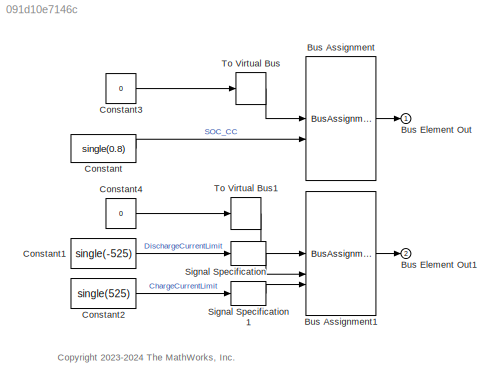
MODEL slx_091d10e7146c
KIND model
CONFIG AbsTol = auto
CONFIG EnableMultiTasking = off
CONFIG FixedStep = auto
CONFIG MaxStep = auto
CONFIG MinStep = auto
CONFIG RelTol = 1e-3
CONFIG SampleTimeConstraint = Unconstrained
CONFIG SolverName = VariableStepAuto
CONFIG StartTime = 0.0
CONFIG StopTime = 10.0
BLOCK [BusAssignment] Bus Assignment
  AssignedSignals = SOC.SOC_CC
BLOCK [BusAssignment] Bus Assignment1
  AssignedSignals = CurrentLimitsBus.DischargeCurrentLimit,CurrentLimitsBus.ChargeCurrentLimit
BLOCK [Outport] Bus Element Out
BLOCK [Outport] Bus Element Out1
  Port = 2
BLOCK [Constant] Constant
  SampleTime = -1
  Value = single(0.8)
BLOCK [Constant] Constant1
  SampleTime = -1
  Value = single(-525)
BLOCK [Constant] Constant2
  SampleTime = -1
  Value = single(525)
BLOCK [Constant] Constant3
  OutDataTypeStr = Bus: BMSInfoBUS
  SampleTime = -1
  Value = 0
BLOCK [Constant] Constant4
  OutDataTypeStr = Bus: BMSCmdBUS
  SampleTime = -1
  Value = 0
BLOCK [SignalSpecification] Signal Specification
  Unit = A
BLOCK [SignalSpecification] Signal Specification1
  Unit = A
BLOCK [SignalConversion] To Virtual Bus
  ConversionOutput = Virtual bus
  OverrideOpt = off
BLOCK [SignalConversion] To Virtual Bus1
  ConversionOutput = Virtual bus
  OverrideOpt = off
ANNOTATION (root): <copyright redacted>
LINE Bus Assignment1:1 -> Bus Element Out1:1
LINE Bus Assignment:1 -> Bus Element Out:1
LINE Constant1:1 -> Signal Specification:1
LINE Constant2:1 -> Signal Specification1:1
LINE Constant3:1 -> To Virtual Bus:1
LINE Constant4:1 -> To Virtual Bus1:1
LINE Constant:1 -> Bus Assignment:2
LINE Signal Specification1:1 -> Bus Assignment1:3
LINE Signal Specification:1 -> Bus Assignment1:2
LINE To Virtual Bus1:1 -> Bus Assignment1:1
LINE To Virtual Bus:1 -> Bus Assignment:1
